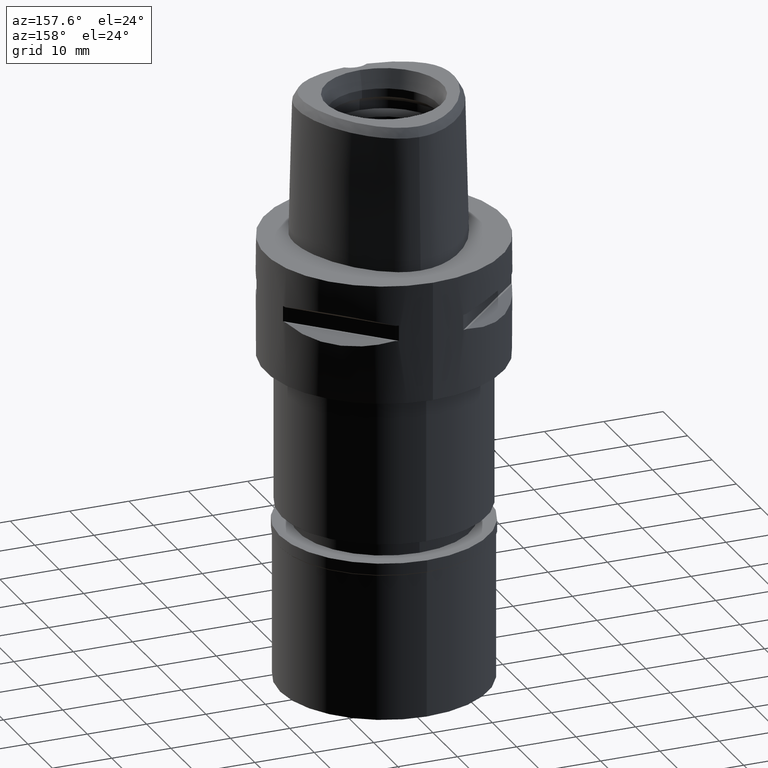
[diagram: clean part render]
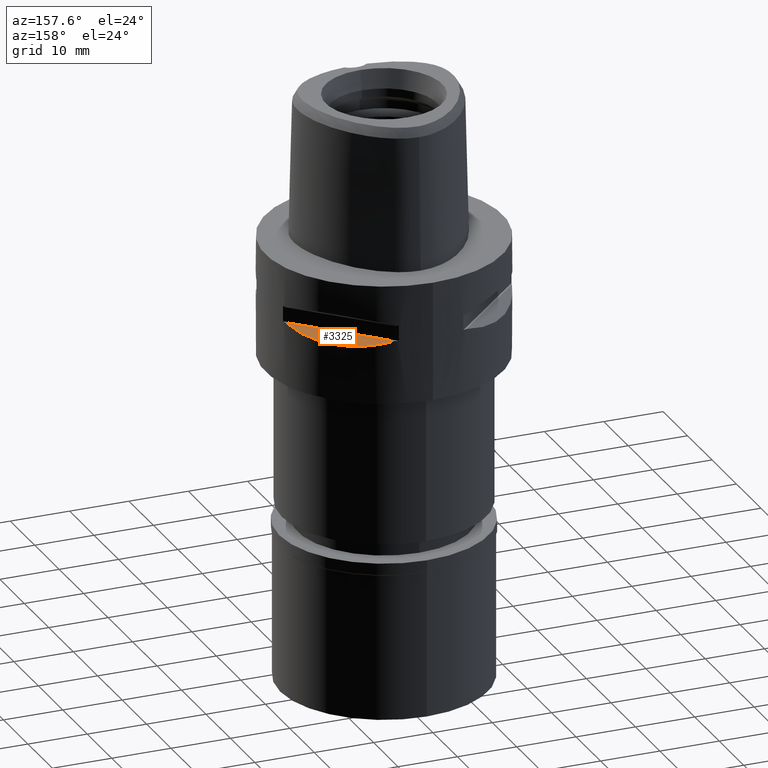
[diagram: same view with one face highlighted and labeled with its STEP entity id]
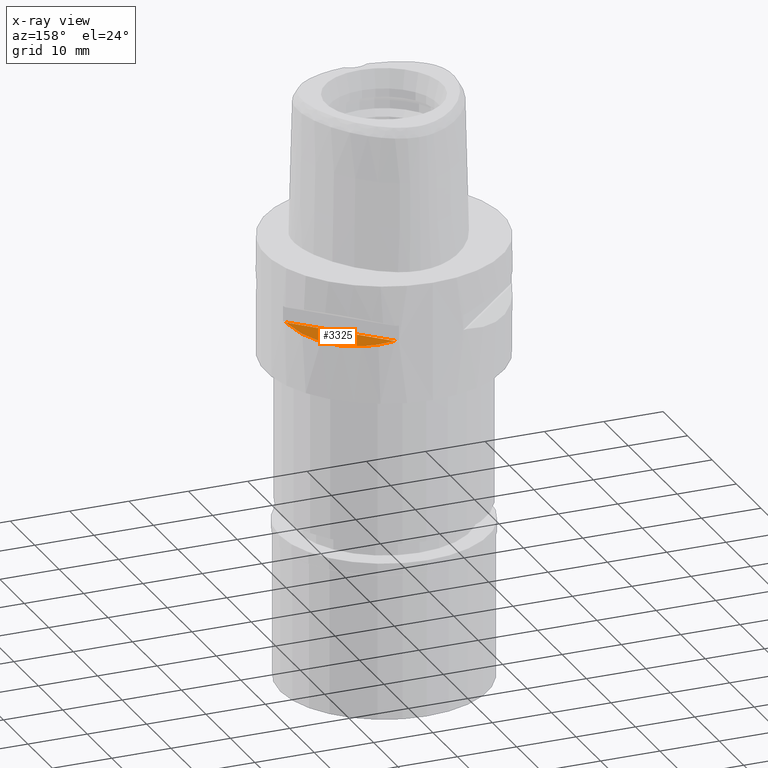
[diagram: x-ray of the same camera — body ghosted, the highlighted face saturated]
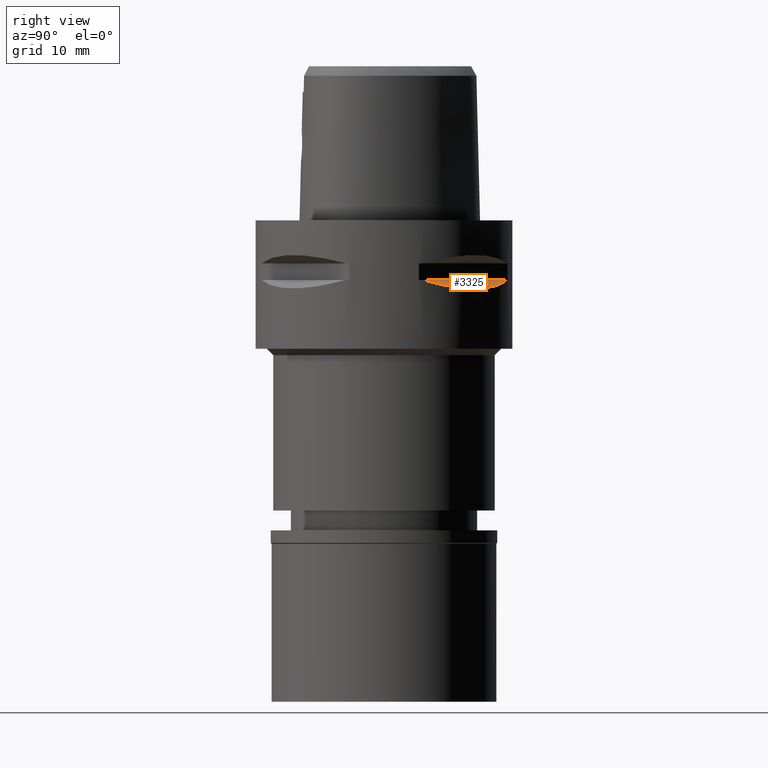
[diagram: same view with one face highlighted and labeled with its STEP entity id]
A machine part, auxiliary view. The second image highlights one B-rep face of the part: STEP entity #3325.
The next image is the same camera in x-ray: the body ghosted, the highlighted face saturated — about 0% of this face is hidden behind the body in this view.
A second angle (right view) of the same face is appended — the face is thin or edge-on in the first view.
In plain terms, the highlighted planar face has unit normal (-0.3536, -0.3536, -0.866).
Its self-contained STEP definition (entity closure, byte-faithful):
#123 = AXIS2_PLACEMENT_3D ( 'NONE', #3149, #2729, #1987 ) ;
#170 = CARTESIAN_POINT ( 'NONE',  ( 16.20025983930734981, 11.83046278586660804, -10.49456541975458101 ) ) ;
#250 = CARTESIAN_POINT ( 'NONE',  ( 13.59286613330407611, 14.69143800710003767, -10.59808963984053776 ) ) ;
#274 = CARTESIAN_POINT ( 'NONE',  ( 10.54606745822987257, 16.99353821201683346, -10.29406776248767841 ) ) ;
#560 = FACE_OUTER_BOUND ( 'NONE', #3280, .T. ) ;
#639 = ORIENTED_EDGE ( 'NONE', *, *, #4623, .T. ) ;
#755 = LINE ( 'NONE', #4386, #1527 ) ;
#959 = CARTESIAN_POINT ( 'NONE',  ( 17.03197491928969853, 10.48392761238943116, -10.28439099668884360 ) ) ;
#1080 = B_SPLINE_CURVE_WITH_KNOTS ( 'NONE', 3,
 ( #2830, #2083, #2029, #4278, #3844, #3563, #3822, #1656, #1319, #959, #170, #3116, #250, #4579, #2335, #4555, #1705, #2059, #3506, #274, #4651, #4197, #3164, #1733 ),
 .UNSPECIFIED., .F., .F.,
 ( 4, 1, 1, 1, 1, 1, 2, 2, 2, 1, 1, 1, 1, 1, 2, 2, 4 ),
 ( 0.0000000000000000000, 0.1249999999999943379, 0.1874999999999913958, 0.2187499999999898137, 0.2343749999999891753, 0.2421874999999887312, 0.2460937499999886202, 0.2499999999999885369, 0.4999999999999896749, 0.6249999999999900080, 0.6874999999999901190, 0.7187499999999902300, 0.7343749999999902300, 0.7421874999999903411, 0.7460937499999905631, 0.7499999999999906741, 1.000000000000000000 ),
 .UNSPECIFIED. ) ;
#1108 = DIRECTION ( 'NONE',  ( -0.7071067811865474617, 0.7071067811865474617, 0.0000000000000000000 ) ) ;
#1319 = CARTESIAN_POINT ( 'NONE',  ( 17.04620345718628016, 10.46079808215855067, -10.28075718178493325 ) ) ;
#1527 = VECTOR ( 'NONE', #1108, 1000.000000000000114 ) ;
#1656 = CARTESIAN_POINT ( 'NONE',  ( 17.07309310408723135, 10.41688921769571685, -10.27380911531026086 ) ) ;
#1705 = CARTESIAN_POINT ( 'NONE',  ( 10.79324770714970683, 16.83802176569061260, -10.33148935319394646 ) ) ;
#1711 = PLANE ( 'NONE',  #123 ) ;
#1733 = CARTESIAN_POINT ( 'NONE',  ( 6.037787676659999825, 19.06685920573999837, -9.299999999999998934 ) ) ;
#1987 = DIRECTION ( 'NONE',  ( 0.0000000000000000000, -0.9258200997725358761, 0.3779644730092654448 ) ) ;
#2029 = CARTESIAN_POINT ( 'NONE',  ( 18.37435100509642183, 7.974729623728613603, -9.808037949572815606 ) ) ;
#2059 = CARTESIAN_POINT ( 'NONE',  ( 10.64933512882759103, 16.92907764914824753, -10.30991069787594583 ) ) ;
#2083 = CARTESIAN_POINT ( 'NONE',  ( 18.81740308416275553, 6.825550513451088541, -9.519762796230487822 ) ) ;
#2222 = ORIENTED_EDGE ( 'NONE', *, *, #3938, .F. ) ;
#2335 = CARTESIAN_POINT ( 'NONE',  ( 11.64036391730781261, 16.27164763638740652, -10.44610182776423635 ) ) ;
#2729 = DIRECTION ( 'NONE',  ( -0.3535533905933054277, -0.3535533905933049836, -0.8660254037844130615 ) ) ;
#2830 = CARTESIAN_POINT ( 'NONE',  ( 19.06685920573999837, 6.037787676656000357, -9.299999999999998934 ) ) ;
#3114 = CARTESIAN_POINT ( 'NONE',  ( 6.037787676659999825, 19.06685920573999837, -9.299999999999998934 ) ) ;
#3116 = CARTESIAN_POINT ( 'NONE',  ( 15.24067460457834677, 13.04353085698639347, -10.59804935437305140 ) ) ;
#3149 = CARTESIAN_POINT ( 'NONE',  ( 1.945721723402000114, 23.15892515900000248, -9.299999999999998934 ) ) ;
#3164 = CARTESIAN_POINT ( 'NONE',  ( 7.613705726440861632, 18.56782271117327809, -9.739635053947477417 ) ) ;
#3280 = EDGE_LOOP ( 'NONE', ( #2222, #639 ) ) ;
#3325 = ADVANCED_FACE ( 'NONE', ( #560 ), #1711, .F. ) ;
#3506 = CARTESIAN_POINT ( 'NONE',  ( 10.58740791271339710, 16.96779488243788592, -10.30043526206612370 ) ) ;
#3563 = CARTESIAN_POINT ( 'NONE',  ( 17.20615142661431918, 10.19668967435799800, -10.23823386088538179 ) ) ;
#3606 = VERTEX_POINT ( 'NONE', #3114 ) ;
#3816 = VERTEX_POINT ( 'NONE', #3974 ) ;
#3822 = CARTESIAN_POINT ( 'NONE',  ( 17.11329306682792151, 10.35096251251531463, -10.26330621669003840 ) ) ;
#3844 = CARTESIAN_POINT ( 'NONE',  ( 17.38810193308633956, 9.886368560431167296, -10.18582677984614193 ) ) ;
#3938 = EDGE_CURVE ( 'NONE', #3816, #3606, #755, .T. ) ;
#3974 = CARTESIAN_POINT ( 'NONE',  ( 19.06685920573999837, 6.037787676656000357, -9.299999999999998934 ) ) ;
#4197 = CARTESIAN_POINT ( 'NONE',  ( 9.102657680265862084, 17.88526274348472356, -10.06884320373147190 ) ) ;
#4278 = CARTESIAN_POINT ( 'NONE',  ( 17.73693809362723428, 9.258624582128710756, -10.07196314004796811 ) ) ;
#4386 = CARTESIAN_POINT ( 'NONE',  ( 19.06685920573999837, 6.037787676657999647, -9.299999999999998934 ) ) ;
#4555 = CARTESIAN_POINT ( 'NONE',  ( 11.07873582668328893, 16.65304730898143504, -10.37252388421027582 ) ) ;
#4579 = CARTESIAN_POINT ( 'NONE',  ( 12.72622750478631204, 15.46304525449667366, -10.55929324095741251 ) ) ;
#4623 = EDGE_CURVE ( 'NONE', #3816, #3606, #1080, .T. ) ;
#4651 = CARTESIAN_POINT ( 'NONE',  ( 10.52654956716446044, 17.00564674891191785, -10.29104290631420504 ) ) ;